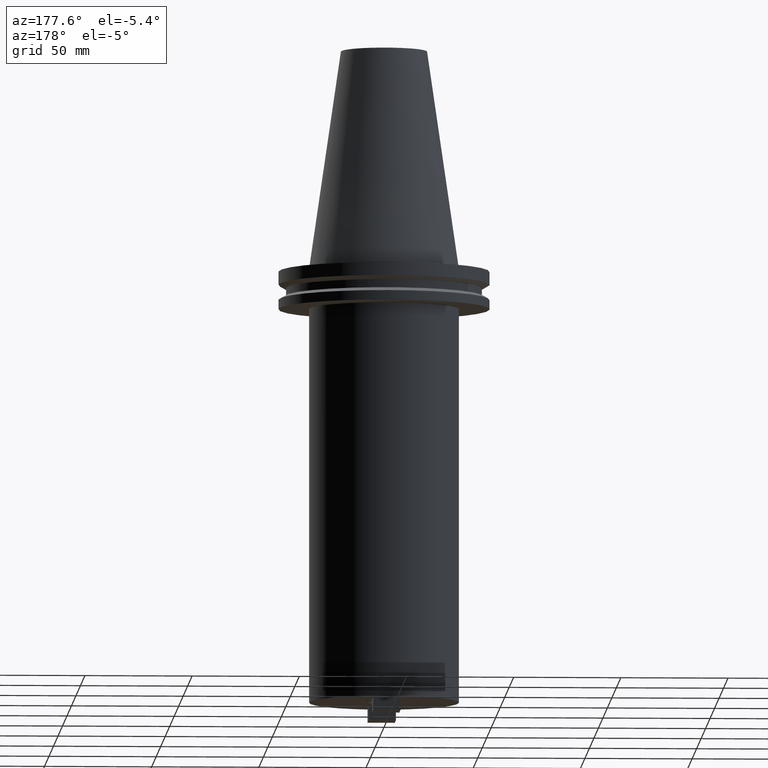
[diagram: clean part render]
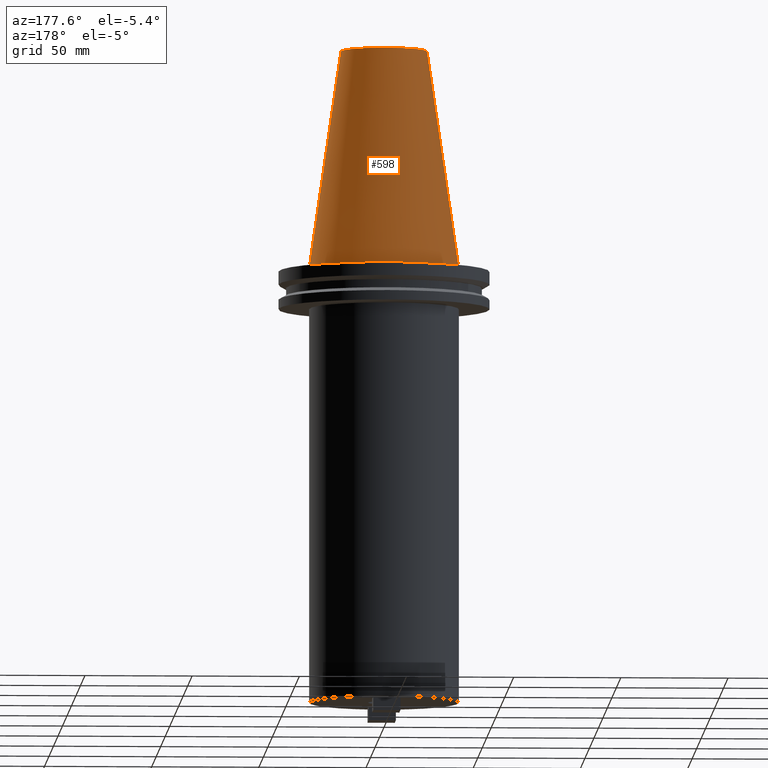
[diagram: same view with one face highlighted and labeled with its STEP entity id]
A machine part, auxiliary view. The second image highlights one B-rep face of the part: STEP entity #598.
In plain terms, the highlighted conical surface has half-angle 8.297 deg.
Its self-contained STEP definition (entity closure, byte-faithful):
#65 = CARTESIAN_POINT ( 'NONE',  ( 0.000000000000000000, 0.000000000000000000, 101.5999999999999801 ) ) ;
#114 = EDGE_LOOP ( 'NONE', ( #491, #285, #686, #346 ) ) ;
#130 = CARTESIAN_POINT ( 'NONE',  ( 34.92499999999999005, 4.277078946022130098E-15, 0.000000000000000000 ) ) ;
#132 = CIRCLE ( 'NONE', #312, 34.92499999999999005 ) ;
#135 = AXIS2_PLACEMENT_3D ( 'NONE', #65, #621, #861 ) ;
#208 = LINE ( 'NONE', #270, #810 ) ;
#228 = EDGE_CURVE ( 'NONE', #745, #851, #724, .T. ) ;
#252 = CARTESIAN_POINT ( 'NONE',  ( -20.10819343178871321, 0.000000000000000000, 101.5999999999999801 ) ) ;
#270 = CARTESIAN_POINT ( 'NONE',  ( 34.92499999999999005, 4.277078946022130098E-15, 0.000000000000000000 ) ) ;
#285 = ORIENTED_EDGE ( 'NONE', *, *, #515, .T. ) ;
#312 = AXIS2_PLACEMENT_3D ( 'NONE', #672, #908, #822 ) ;
#346 = ORIENTED_EDGE ( 'NONE', *, *, #444, .F. ) ;
#422 = DIRECTION ( 'NONE',  ( 0.1443082272672999988, 1.767266086135277066E-17, -0.9895327864921755756 ) ) ;
#442 = FACE_OUTER_BOUND ( 'NONE', #114, .T. ) ;
#444 = EDGE_CURVE ( 'NONE', #851, #647, #588, .T. ) ;
#463 = VECTOR ( 'NONE', #965, 999.9999999999998863 ) ;
#465 = EDGE_CURVE ( 'NONE', #613, #647, #132, .T. ) ;
#466 = CARTESIAN_POINT ( 'NONE',  ( -34.92499999999999005, 0.000000000000000000, 0.000000000000000000 ) ) ;
#491 = ORIENTED_EDGE ( 'NONE', *, *, #228, .F. ) ;
#510 = CARTESIAN_POINT ( 'NONE',  ( -34.92499999999999005, 0.000000000000000000, 0.000000000000000000 ) ) ;
#515 = EDGE_CURVE ( 'NONE', #745, #613, #208, .T. ) ;
#540 = DIRECTION ( 'NONE',  ( -1.000000000000000000, 0.000000000000000000, 0.000000000000000000 ) ) ;
#588 = LINE ( 'NONE', #510, #463 ) ;
#598 = ADVANCED_FACE ( 'NONE', ( #442 ), #939, .T. ) ;
#613 = VERTEX_POINT ( 'NONE', #130 ) ;
#621 = DIRECTION ( 'NONE',  ( -0.000000000000000000, -0.000000000000000000, 1.000000000000000000 ) ) ;
#647 = VERTEX_POINT ( 'NONE', #466 ) ;
#672 = CARTESIAN_POINT ( 'NONE',  ( 0.000000000000000000, 0.000000000000000000, 0.000000000000000000 ) ) ;
#686 = ORIENTED_EDGE ( 'NONE', *, *, #465, .T. ) ;
#724 = CIRCLE ( 'NONE', #135, 20.10819343178871321 ) ;
#745 = VERTEX_POINT ( 'NONE', #799 ) ;
#799 = CARTESIAN_POINT ( 'NONE',  ( 20.10819343178871321, 3.369811209154858606E-15, 101.5999999999999801 ) ) ;
#810 = VECTOR ( 'NONE', #422, 999.9999999999998863 ) ;
#822 = DIRECTION ( 'NONE',  ( 1.000000000000000000, 0.000000000000000000, 0.000000000000000000 ) ) ;
#849 = DIRECTION ( 'NONE',  ( 0.000000000000000000, 0.000000000000000000, -1.000000000000000000 ) ) ;
#851 = VERTEX_POINT ( 'NONE', #252 ) ;
#857 = AXIS2_PLACEMENT_3D ( 'NONE', #918, #849, #540 ) ;
#861 = DIRECTION ( 'NONE',  ( 1.000000000000000000, 0.000000000000000000, 0.000000000000000000 ) ) ;
#908 = DIRECTION ( 'NONE',  ( -0.000000000000000000, -0.000000000000000000, 1.000000000000000000 ) ) ;
#918 = CARTESIAN_POINT ( 'NONE',  ( 0.000000000000000000, 0.000000000000000000, 0.000000000000000000 ) ) ;
#939 = CONICAL_SURFACE ( 'NONE', #857, 34.92499999999999005, 0.1448138465474119452 ) ;
#965 = DIRECTION ( 'NONE',  ( -0.1443082272672999988, 0.000000000000000000, -0.9895327864921755756 ) ) ;